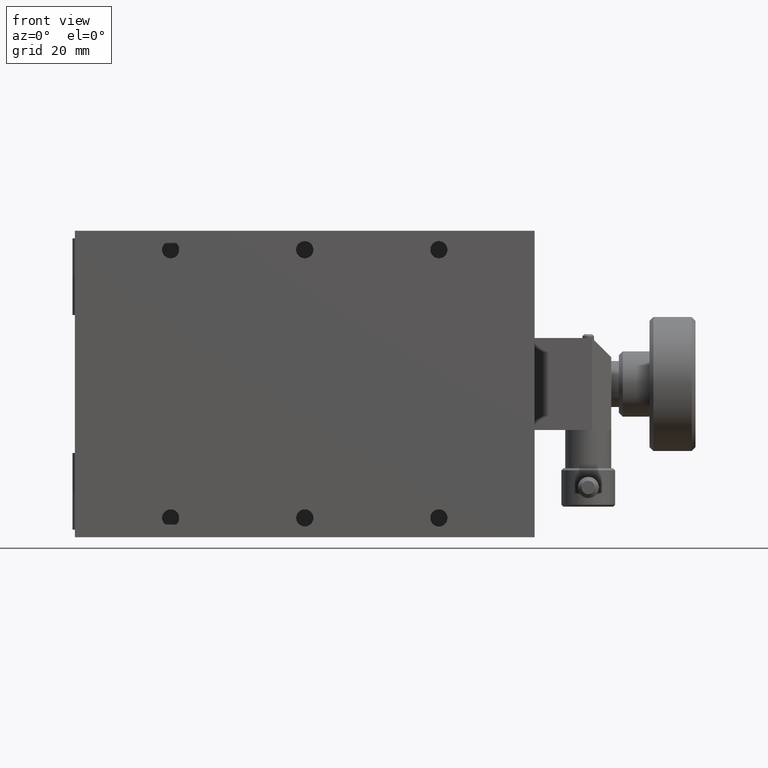
[diagram: clean part render]
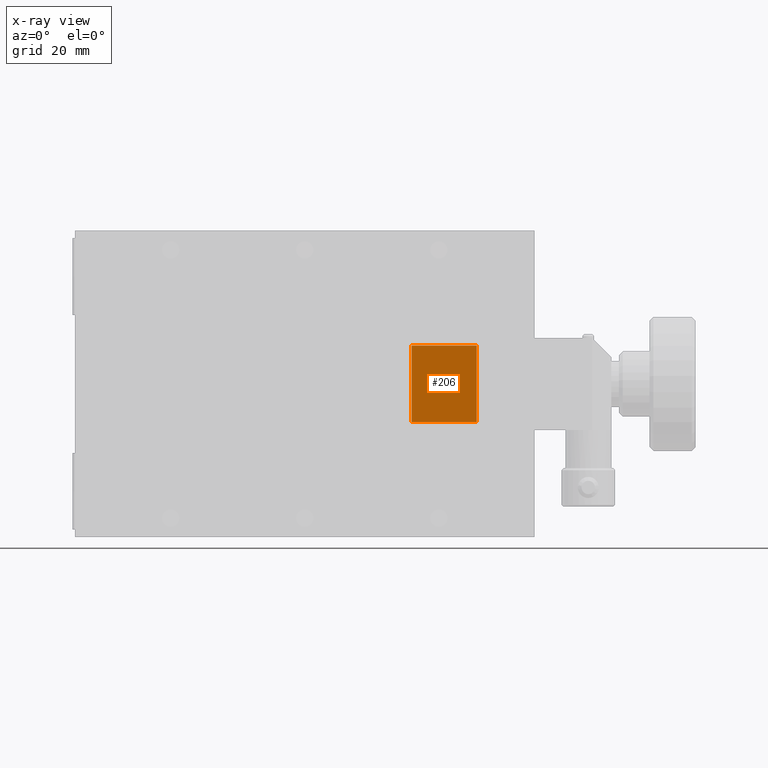
[diagram: x-ray — body ghosted, one internal face saturated and labeled with its STEP entity id]
A machine part, front view, then the same camera in x-ray: the body is ghosted and one INTERNAL B-rep face — a face not visible from any outside direction — is saturated and labeled: STEP entity #206.
In plain terms, the highlighted planar face has unit normal (-0, 1, 0).
Its self-contained STEP definition (entity closure, byte-faithful):
#133 = DIRECTION ( 'NONE',  ( -1.000000000000000000, 0.000000000000000000, 0.000000000000000000 ) ) ;
#187 = VECTOR ( 'NONE', #8310, 1000.000000000000000 ) ;
#206 = ADVANCED_FACE ( 'NONE', ( #1754 ), #4560, .F. ) ;
#530 = CARTESIAN_POINT ( 'NONE',  ( 104.8999999999999915, 12.00000000000000000, 10.00000000000000000 ) ) ;
#695 = EDGE_CURVE ( 'NONE', #5961, #3880, #5511, .T. ) ;
#1685 = ORIENTED_EDGE ( 'NONE', *, *, #2993, .F. ) ;
#1754 = FACE_OUTER_BOUND ( 'NONE', #3686, .T. ) ;
#2053 = CARTESIAN_POINT ( 'NONE',  ( 104.8999999999999915, 12.00000000000000000, 10.00000000000000000 ) ) ;
#2265 = ORIENTED_EDGE ( 'NONE', *, *, #8283, .T. ) ;
#2332 = CARTESIAN_POINT ( 'NONE',  ( 87.90000000000000568, 12.00000000000000000, 10.00000000000000000 ) ) ;
#2993 = EDGE_CURVE ( 'NONE', #5667, #5961, #5886, .T. ) ;
#3611 = CARTESIAN_POINT ( 'NONE',  ( 104.8999999999999915, 12.00000000000000000, 10.00000000000000000 ) ) ;
#3686 = EDGE_LOOP ( 'NONE', ( #2265, #8051, #1685, #6292 ) ) ;
#3880 = VERTEX_POINT ( 'NONE', #7445 ) ;
#4560 = PLANE ( 'NONE',  #5955 ) ;
#5314 = CARTESIAN_POINT ( 'NONE',  ( 104.8999999999999915, 12.00000000000000000, -10.00000000000000000 ) ) ;
#5421 = CARTESIAN_POINT ( 'NONE',  ( 104.8999999999999915, 12.00000000000000000, -10.00000000000000000 ) ) ;
#5511 = LINE ( 'NONE', #5421, #187 ) ;
#5667 = VERTEX_POINT ( 'NONE', #2053 ) ;
#5886 = LINE ( 'NONE', #530, #7553 ) ;
#5921 = VECTOR ( 'NONE', #7443, 1000.000000000000000 ) ;
#5955 = AXIS2_PLACEMENT_3D ( 'NONE', #8923, #8280, #8361 ) ;
#5961 = VERTEX_POINT ( 'NONE', #5314 ) ;
#6019 = LINE ( 'NONE', #8814, #5921 ) ;
#6292 = ORIENTED_EDGE ( 'NONE', *, *, #7181, .T. ) ;
#6317 = LINE ( 'NONE', #3611, #8831 ) ;
#6755 = VERTEX_POINT ( 'NONE', #2332 ) ;
#7181 = EDGE_CURVE ( 'NONE', #5667, #6755, #6317, .T. ) ;
#7443 = DIRECTION ( 'NONE',  ( 0.000000000000000000, 0.000000000000000000, -1.000000000000000000 ) ) ;
#7445 = CARTESIAN_POINT ( 'NONE',  ( 87.90000000000000568, 12.00000000000000000, -10.00000000000000000 ) ) ;
#7553 = VECTOR ( 'NONE', #8962, 1000.000000000000000 ) ;
#8051 = ORIENTED_EDGE ( 'NONE', *, *, #695, .F. ) ;
#8280 = DIRECTION ( 'NONE',  ( -0.000000000000000000, 1.000000000000000000, 0.000000000000000000 ) ) ;
#8283 = EDGE_CURVE ( 'NONE', #6755, #3880, #6019, .T. ) ;
#8310 = DIRECTION ( 'NONE',  ( -1.000000000000000000, 0.000000000000000000, 0.000000000000000000 ) ) ;
#8361 = DIRECTION ( 'NONE',  ( 1.000000000000000000, 0.000000000000000000, 0.000000000000000000 ) ) ;
#8814 = CARTESIAN_POINT ( 'NONE',  ( 87.90000000000000568, 12.00000000000000000, 10.00000000000000000 ) ) ;
#8831 = VECTOR ( 'NONE', #133, 1000.000000000000000 ) ;
#8923 = CARTESIAN_POINT ( 'NONE',  ( 104.8999999999999915, 12.00000000000000000, 10.00000000000000000 ) ) ;
#8962 = DIRECTION ( 'NONE',  ( 0.000000000000000000, 0.000000000000000000, -1.000000000000000000 ) ) ;